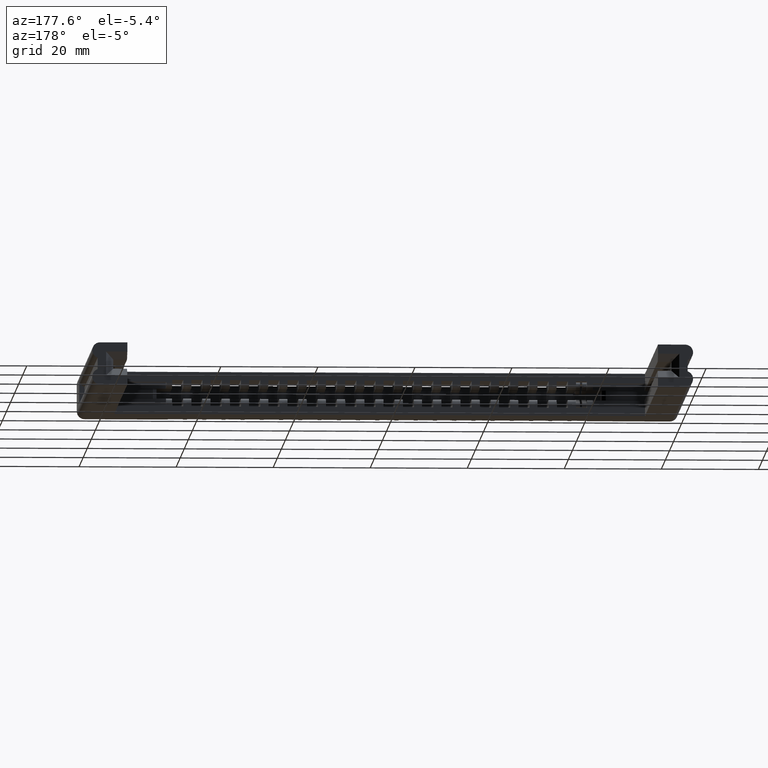
[diagram: clean part render]
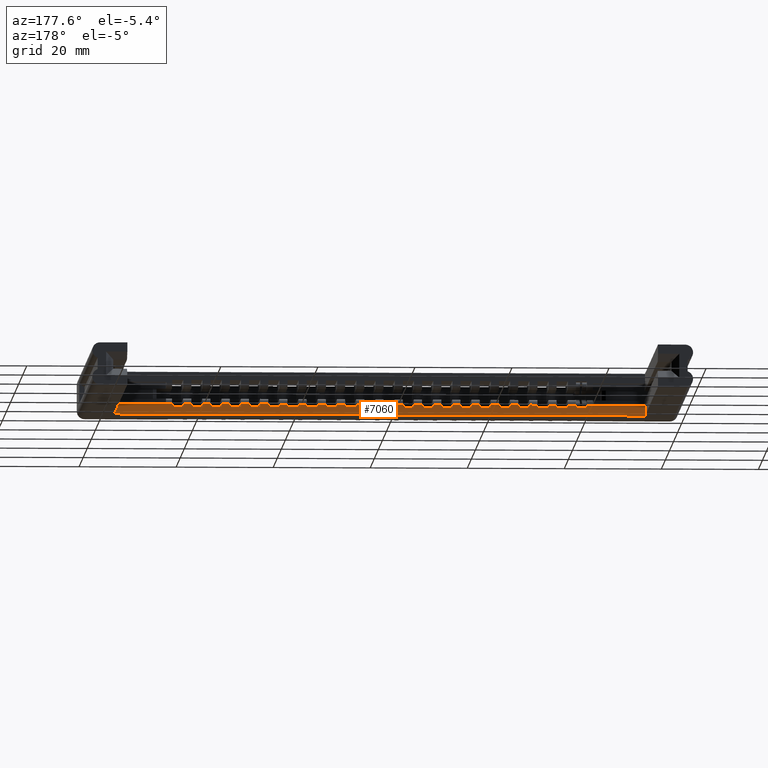
[diagram: same view with one face highlighted and labeled with its STEP entity id]
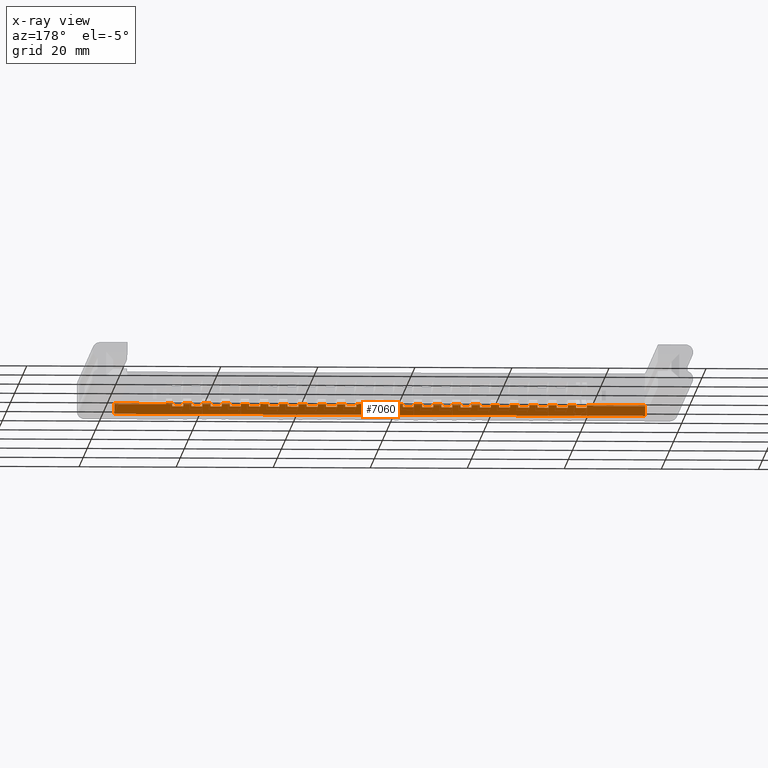
[diagram: x-ray of the same camera — body ghosted, the highlighted face saturated]
A machine part, auxiliary view. The second image highlights one B-rep face of the part: STEP entity #7060.
The next image is the same camera in x-ray: the body ghosted, the highlighted face saturated — about 0% of this face is hidden behind the body in this view.
In plain terms, the highlighted planar face has unit normal (0, -1, 0).
Its self-contained STEP definition (entity closure, byte-faithful):
#7 = DIRECTION ( 'NONE',  ( -0.0000000000000000000, -0.0000000000000000000, 1.000000000000000000 ) ) ;
#12 = DIRECTION ( 'NONE',  ( -0.0000000000000000000, -0.0000000000000000000, 1.000000000000000000 ) ) ;
#16 = VERTEX_POINT ( 'NONE', #12335 ) ;
#22 = EDGE_CURVE ( 'NONE', #7109, #6480, #3392, .T. ) ;
#38 = VERTEX_POINT ( 'NONE', #4899 ) ;
#90 = VERTEX_POINT ( 'NONE', #9988 ) ;
#92 = DIRECTION ( 'NONE',  ( 1.000000000000000000, -0.0000000000000000000, -0.0000000000000000000 ) ) ;
#114 = LINE ( 'NONE', #10436, #16698 ) ;
#162 = EDGE_CURVE ( 'NONE', #90, #12473, #4751, .T. ) ;
#164 = ORIENTED_EDGE ( 'NONE', *, *, #19438, .T. ) ;
#177 = CARTESIAN_POINT ( 'NONE',  ( 2.314499999999998900, 0.4729999999999994200, -0.1075000000000000000 ) ) ;
#211 = VECTOR ( 'NONE', #4588, 39.37007874015748100 ) ;
#238 = DIRECTION ( 'NONE',  ( 1.000000000000000000, -0.0000000000000000000, -0.0000000000000000000 ) ) ;
#265 = CARTESIAN_POINT ( 'NONE',  ( 0.7544999999999997300, 0.4729999999999994200, -0.08700000000000039600 ) ) ;
#281 = CARTESIAN_POINT ( 'NONE',  ( 1.624499999999999400, 0.4729999999999994200, -0.08700000000000039600 ) ) ;
#362 = LINE ( 'NONE', #20414, #14084 ) ;
#374 = EDGE_CURVE ( 'NONE', #17714, #21781, #4479, .T. ) ;
#380 = CARTESIAN_POINT ( 'NONE',  ( 4.590500000000000500, 0.4729999999999994200, -0.08700000000000039600 ) ) ;
#405 = EDGE_CURVE ( 'NONE', #6628, #18623, #16842, .T. ) ;
#425 = VERTEX_POINT ( 'NONE', #15583 ) ;
#435 = LINE ( 'NONE', #2223, #17486 ) ;
#453 = DIRECTION ( 'NONE',  ( 1.000000000000000000, -0.0000000000000000000, -0.0000000000000000000 ) ) ;
#472 = ORIENTED_EDGE ( 'NONE', *, *, #4162, .F. ) ;
#488 = DIRECTION ( 'NONE',  ( -0.0000000000000000000, -0.0000000000000000000, 1.000000000000000000 ) ) ;
#489 = ORIENTED_EDGE ( 'NONE', *, *, #162, .T. ) ;
#503 = VERTEX_POINT ( 'NONE', #10817 ) ;
#520 = LINE ( 'NONE', #20086, #17562 ) ;
#521 = VERTEX_POINT ( 'NONE', #15051 ) ;
#523 = DIRECTION ( 'NONE',  ( 1.000000000000000000, -0.0000000000000000000, -0.0000000000000000000 ) ) ;
#545 = LINE ( 'NONE', #9645, #18585 ) ;
#546 = LINE ( 'NONE', #18940, #9798 ) ;
#584 = DIRECTION ( 'NONE',  ( 1.000000000000000000, -0.0000000000000000000, -0.0000000000000000000 ) ) ;
#621 = EDGE_CURVE ( 'NONE', #7353, #10639, #9283, .T. ) ;
#626 = CARTESIAN_POINT ( 'NONE',  ( 0.7060000000000000700, 0.4729999999999994200, -0.08700000000000039600 ) ) ;
#637 = CARTESIAN_POINT ( 'NONE',  ( 2.314499999999998900, 0.4729999999999994200, -0.08700000000000039600 ) ) ;
#684 = VERTEX_POINT ( 'NONE', #7852 ) ;
#687 = VECTOR ( 'NONE', #453, 39.37007874015748100 ) ;
#718 = EDGE_CURVE ( 'NONE', #2139, #11867, #1403, .T. ) ;
#746 = DIRECTION ( 'NONE',  ( -0.0000000000000000000, -0.0000000000000000000, 1.000000000000000000 ) ) ;
#761 = VECTOR ( 'NONE', #14920, 39.37007874015748100 ) ;
#782 = CARTESIAN_POINT ( 'NONE',  ( 3.874499999999999400, 0.4729999999999994200, -0.08700000000000039600 ) ) ;
#797 = VECTOR ( 'NONE', #13006, 39.37007874015748100 ) ;
#811 = CARTESIAN_POINT ( 'NONE',  ( 4.590500000000000500, 0.4729999999999994200, -0.08700000000000039600 ) ) ;
#820 = LINE ( 'NONE', #18393, #9519 ) ;
#874 = ORIENTED_EDGE ( 'NONE', *, *, #15339, .T. ) ;
#986 = CARTESIAN_POINT ( 'NONE',  ( 2.092499999999999400, 0.4729999999999994200, 0.1075000000000000000 ) ) ;
#1044 = DIRECTION ( 'NONE',  ( 1.000000000000000000, -0.0000000000000000000, -0.0000000000000000000 ) ) ;
#1054 = VECTOR ( 'NONE', #17840, 39.37007874015748100 ) ;
#1066 = LINE ( 'NONE', #15035, #1636 ) ;
#1081 = ORIENTED_EDGE ( 'NONE', *, *, #14165, .F. ) ;
#1129 = VECTOR ( 'NONE', #16263, 39.37007874015748100 ) ;
#1170 = EDGE_CURVE ( 'NONE', #4948, #5492, #15008, .T. ) ;
#1245 = CARTESIAN_POINT ( 'NONE',  ( 3.496499999999999700, 0.4729999999999994200, 0.1075000000000000000 ) ) ;
#1248 = ORIENTED_EDGE ( 'NONE', *, *, #22, .F. ) ;
#1308 = LINE ( 'NONE', #19625, #9972 ) ;
#1323 = VERTEX_POINT ( 'NONE', #16858 ) ;
#1374 = CARTESIAN_POINT ( 'NONE',  ( 2.248499999999999500, 0.4729999999999994200, 0.1075000000000000000 ) ) ;
#1380 = VECTOR ( 'NONE', #3944, 39.37007874015748100 ) ;
#1403 = LINE ( 'NONE', #21845, #10601 ) ;
#1422 = VECTOR ( 'NONE', #3819, 39.37007874015748100 ) ;
#1442 = EDGE_CURVE ( 'NONE', #12750, #18879, #18562, .T. ) ;
#1503 = CARTESIAN_POINT ( 'NONE',  ( 1.000499999999999700, 0.4729999999999994200, -0.08700000000000039600 ) ) ;
#1529 = CARTESIAN_POINT ( 'NONE',  ( 1.066499999999999600, 0.4729999999999994200, -0.1075000000000000000 ) ) ;
#1546 = ORIENTED_EDGE ( 'NONE', *, *, #11499, .T. ) ;
#1554 = CARTESIAN_POINT ( 'NONE',  ( 1.312499999999999600, 0.4729999999999994200, -0.08700000000000039600 ) ) ;
#1561 = CARTESIAN_POINT ( 'NONE',  ( 1.780499999999999500, 0.4729999999999994200, 0.1075000000000000000 ) ) ;
#1570 = ORIENTED_EDGE ( 'NONE', *, *, #5375, .F. ) ;
#1636 = VECTOR ( 'NONE', #10341, 39.37007874015748100 ) ;
#1650 = VECTOR ( 'NONE', #523, 39.37007874015748100 ) ;
#1708 = CARTESIAN_POINT ( 'NONE',  ( 2.626500000000000100, 0.4729999999999994200, -0.1075000000000000000 ) ) ;
#1712 = EDGE_CURVE ( 'NONE', #5419, #11793, #21593, .T. ) ;
#1731 = CARTESIAN_POINT ( 'NONE',  ( 4.168999999999999600, 0.4729999999999994200, -0.08700000000000039600 ) ) ;
#1741 = EDGE_CURVE ( 'NONE', #15409, #14948, #17799, .T. ) ;
#1753 = EDGE_CURVE ( 'NONE', #17192, #14778, #7291, .T. ) ;
#1841 = DIRECTION ( 'NONE',  ( 1.000000000000000000, -0.0000000000000000000, -0.0000000000000000000 ) ) ;
#1846 = VECTOR ( 'NONE', #5988, 39.37007874015748100 ) ;
#1847 = VECTOR ( 'NONE', #13091, 39.37007874015748100 ) ;
#1868 = EDGE_CURVE ( 'NONE', #503, #8597, #1066, .T. ) ;
#1870 = DIRECTION ( 'NONE',  ( -1.000000000000000000, 0.0000000000000000000, 1.215234872626451300E-016 ) ) ;
#1906 = ORIENTED_EDGE ( 'NONE', *, *, #1170, .F. ) ;
#1923 = EDGE_CURVE ( 'NONE', #5702, #5492, #17536, .T. ) ;
#1997 = ORIENTED_EDGE ( 'NONE', *, *, #3996, .F. ) ;
#2001 = CARTESIAN_POINT ( 'NONE',  ( 1.780499999999999500, 0.4729999999999994200, -0.1075000000000000000 ) ) ;
#2019 = VERTEX_POINT ( 'NONE', #15105 ) ;
#2028 = CARTESIAN_POINT ( 'NONE',  ( 4.120499999999999800, 0.4729999999999994200, -0.1075000000000000000 ) ) ;
#2101 = LINE ( 'NONE', #5544, #6164 ) ;
#2104 = DIRECTION ( 'NONE',  ( -0.0000000000000000000, -0.0000000000000000000, 1.000000000000000000 ) ) ;
#2132 = VECTOR ( 'NONE', #3385, 39.37007874015748100 ) ;
#2137 = ORIENTED_EDGE ( 'NONE', *, *, #16217, .T. ) ;
#2139 = VERTEX_POINT ( 'NONE', #13826 ) ;
#2146 = LINE ( 'NONE', #12506, #7242 ) ;
#2154 = CARTESIAN_POINT ( 'NONE',  ( 1.780499999999999500, 0.4729999999999994200, -0.08700000000000039600 ) ) ;
#2196 = VERTEX_POINT ( 'NONE', #12353 ) ;
#2210 = VERTEX_POINT ( 'NONE', #281 ) ;
#2223 = CARTESIAN_POINT ( 'NONE',  ( 1.534499999999999100, 0.4729999999999994200, -0.1075000000000000000 ) ) ;
#2242 = DIRECTION ( 'NONE',  ( -0.0000000000000000000, -0.0000000000000000000, 1.000000000000000000 ) ) ;
#2253 = LINE ( 'NONE', #7834, #9797 ) ;
#2291 = VERTEX_POINT ( 'NONE', #626 ) ;
#2312 = LINE ( 'NONE', #8329, #19668 ) ;
#2354 = LINE ( 'NONE', #8047, #10951 ) ;
#2360 = VERTEX_POINT ( 'NONE', #15952 ) ;
#2405 = ORIENTED_EDGE ( 'NONE', *, *, #6818, .T. ) ;
#2413 = LINE ( 'NONE', #14429, #1846 ) ;
#2425 = DIRECTION ( 'NONE',  ( -0.0000000000000000000, -0.0000000000000000000, 1.000000000000000000 ) ) ;
#2435 = DIRECTION ( 'NONE',  ( -0.0000000000000000000, -0.0000000000000000000, 1.000000000000000000 ) ) ;
#2453 = CARTESIAN_POINT ( 'NONE',  ( 4.590500000000000500, 0.4729999999999994200, -0.08700000000000039600 ) ) ;
#2463 = EDGE_CURVE ( 'NONE', #19440, #11793, #19276, .T. ) ;
#2484 = CARTESIAN_POINT ( 'NONE',  ( 2.314499999999998900, 0.4729999999999994200, -0.1075000000000000000 ) ) ;
#2487 = EDGE_CURVE ( 'NONE', #14766, #19658, #1308, .T. ) ;
#2502 = DIRECTION ( 'NONE',  ( -0.0000000000000000000, 0.0000000000000000000, 1.000000000000000000 ) ) ;
#2581 = LINE ( 'NONE', #9712, #11181 ) ;
#2615 = CARTESIAN_POINT ( 'NONE',  ( 2.782499999999999800, 0.4729999999999994200, 0.1075000000000000000 ) ) ;
#2680 = VERTEX_POINT ( 'NONE', #5154 ) ;
#2706 = VECTOR ( 'NONE', #12439, 39.37007874015748100 ) ;
#2718 = ORIENTED_EDGE ( 'NONE', *, *, #10186, .F. ) ;
#2734 = LINE ( 'NONE', #14525, #11862 ) ;
#2739 = ORIENTED_EDGE ( 'NONE', *, *, #15605, .T. ) ;
#2761 = CARTESIAN_POINT ( 'NONE',  ( 4.590500000000000500, 0.4729999999999994200, -0.08700000000000039600 ) ) ;
#2794 = DIRECTION ( 'NONE',  ( -0.0000000000000000000, -0.0000000000000000000, 1.000000000000000000 ) ) ;
#2801 = CARTESIAN_POINT ( 'NONE',  ( 3.562499999999999600, 0.4729999999999994200, -0.1075000000000000000 ) ) ;
#2807 = ORIENTED_EDGE ( 'NONE', *, *, #11971, .T. ) ;
#2815 = DIRECTION ( 'NONE',  ( 1.000000000000000000, -0.0000000000000000000, -0.0000000000000000000 ) ) ;
#2858 = CARTESIAN_POINT ( 'NONE',  ( 4.590500000000000500, 0.4729999999999994200, -0.08700000000000039600 ) ) ;
#3000 = ORIENTED_EDGE ( 'NONE', *, *, #2463, .T. ) ;
#3007 = EDGE_CURVE ( 'NONE', #6952, #20322, #17221, .T. ) ;
#3054 = DIRECTION ( 'NONE',  ( -0.0000000000000000000, -0.0000000000000000000, 1.000000000000000000 ) ) ;
#3082 = CARTESIAN_POINT ( 'NONE',  ( 1.624499999999999400, 0.4729999999999994200, 0.1075000000000000000 ) ) ;
#3124 = CARTESIAN_POINT ( 'NONE',  ( 2.470499999999999900, 0.4729999999999994200, -0.08700000000000039600 ) ) ;
#3145 = DIRECTION ( 'NONE',  ( 1.000000000000000000, -0.0000000000000000000, -0.0000000000000000000 ) ) ;
#3160 = DIRECTION ( 'NONE',  ( -0.0000000000000000000, -0.0000000000000000000, 1.000000000000000000 ) ) ;
#3167 = EDGE_CURVE ( 'NONE', #16973, #21284, #5125, .T. ) ;
#3168 = DIRECTION ( 'NONE',  ( 0.0000000000000000000, -1.000000000000000000, 0.0000000000000000000 ) ) ;
#3199 = VERTEX_POINT ( 'NONE', #14828 ) ;
#3213 = EDGE_CURVE ( 'NONE', #10739, #20328, #13125, .T. ) ;
#3293 = LINE ( 'NONE', #10993, #11875 ) ;
#3301 = VECTOR ( 'NONE', #19097, 39.37007874015748100 ) ;
#3356 = VECTOR ( 'NONE', #15625, 39.37007874015748100 ) ;
#3364 = LINE ( 'NONE', #3761, #20635 ) ;
#3385 = DIRECTION ( 'NONE',  ( -0.0000000000000000000, -0.0000000000000000000, 1.000000000000000000 ) ) ;
#3392 = LINE ( 'NONE', #13978, #20663 ) ;
#3432 = CARTESIAN_POINT ( 'NONE',  ( 1.066499999999999600, 0.4729999999999994200, -0.08700000000000039600 ) ) ;
#3441 = LINE ( 'NONE', #13914, #20710 ) ;
#3453 = EDGE_CURVE ( 'NONE', #8855, #425, #114, .T. ) ;
#3464 = LINE ( 'NONE', #14474, #7453 ) ;
#3510 = ORIENTED_EDGE ( 'NONE', *, *, #14466, .T. ) ;
#3525 = VECTOR ( 'NONE', #4387, 39.37007874015748100 ) ;
#3537 = EDGE_CURVE ( 'NONE', #17714, #2680, #2101, .T. ) ;
#3584 = CARTESIAN_POINT ( 'NONE',  ( 3.562499999999999600, 0.4729999999999994200, -0.1075000000000000000 ) ) ;
#3592 = ORIENTED_EDGE ( 'NONE', *, *, #1753, .T. ) ;
#3605 = DIRECTION ( 'NONE',  ( -0.0000000000000000000, -0.0000000000000000000, 1.000000000000000000 ) ) ;
#3613 = ORIENTED_EDGE ( 'NONE', *, *, #12639, .T. ) ;
#3629 = VECTOR ( 'NONE', #8740, 39.37007874015748100 ) ;
#3672 = EDGE_CURVE ( 'NONE', #9068, #14673, #12569, .T. ) ;
#3681 = ORIENTED_EDGE ( 'NONE', *, *, #2487, .T. ) ;
#3692 = CARTESIAN_POINT ( 'NONE',  ( 2.404499999999999200, 0.4729999999999994200, -0.1075000000000000000 ) ) ;
#3741 = EDGE_CURVE ( 'NONE', #10118, #7177, #6940, .T. ) ;
#3761 = CARTESIAN_POINT ( 'NONE',  ( 3.874499999999999400, 0.4729999999999994200, -0.1075000000000000000 ) ) ;
#3804 = LINE ( 'NONE', #9174, #19528 ) ;
#3819 = DIRECTION ( 'NONE',  ( -0.0000000000000000000, -0.0000000000000000000, 1.000000000000000000 ) ) ;
#3831 = VERTEX_POINT ( 'NONE', #18362 ) ;
#3855 = ORIENTED_EDGE ( 'NONE', *, *, #21584, .T. ) ;
#3944 = DIRECTION ( 'NONE',  ( -0.0000000000000000000, -0.0000000000000000000, 1.000000000000000000 ) ) ;
#3996 = EDGE_CURVE ( 'NONE', #6628, #6101, #362, .T. ) ;
#4009 = ORIENTED_EDGE ( 'NONE', *, *, #1868, .T. ) ;
#4032 = CARTESIAN_POINT ( 'NONE',  ( 3.406499999999999900, 0.4729999999999994200, -0.1075000000000000000 ) ) ;
#4107 = ORIENTED_EDGE ( 'NONE', *, *, #16592, .T. ) ;
#4143 = LINE ( 'NONE', #9263, #16542 ) ;
#4162 = EDGE_CURVE ( 'NONE', #16, #20476, #19190, .T. ) ;
#4248 = DIRECTION ( 'NONE',  ( 1.000000000000000000, -0.0000000000000000000, -0.0000000000000000000 ) ) ;
#4284 = LINE ( 'NONE', #18890, #20977 ) ;
#4327 = CARTESIAN_POINT ( 'NONE',  ( 3.406499999999999900, 0.4729999999999994200, -0.08700000000000039600 ) ) ;
#4344 = ORIENTED_EDGE ( 'NONE', *, *, #13326, .T. ) ;
#4379 = DIRECTION ( 'NONE',  ( 1.000000000000000000, -0.0000000000000000000, -0.0000000000000000000 ) ) ;
#4387 = DIRECTION ( 'NONE',  ( -0.0000000000000000000, -0.0000000000000000000, 1.000000000000000000 ) ) ;
#4396 = FACE_OUTER_BOUND ( 'NONE', #10845, .T. ) ;
#4413 = CARTESIAN_POINT ( 'NONE',  ( 3.094500000000000000, 0.4729999999999994200, -0.1075000000000000000 ) ) ;
#4479 = LINE ( 'NONE', #13447, #21655 ) ;
#4490 = ORIENTED_EDGE ( 'NONE', *, *, #6984, .T. ) ;
#4517 = EDGE_CURVE ( 'NONE', #6063, #5650, #8544, .T. ) ;
#4576 = CARTESIAN_POINT ( 'NONE',  ( 3.028499999999999700, 0.4729999999999994200, -0.08700000000000039600 ) ) ;
#4588 = DIRECTION ( 'NONE',  ( 1.000000000000000000, -0.0000000000000000000, -0.0000000000000000000 ) ) ;
#4605 = VECTOR ( 'NONE', #16406, 39.37007874015748100 ) ;
#4655 = CARTESIAN_POINT ( 'NONE',  ( 4.590500000000000500, 0.4729999999999994200, -0.08700000000000039600 ) ) ;
#4684 = VERTEX_POINT ( 'NONE', #265 ) ;
#4707 = LINE ( 'NONE', #2761, #17062 ) ;
#4735 = CARTESIAN_POINT ( 'NONE',  ( 1.378499999999999600, 0.4729999999999994200, -0.1075000000000000000 ) ) ;
#4748 = CARTESIAN_POINT ( 'NONE',  ( 3.496499999999999300, 0.4729999999999994200, -0.08700000000000039600 ) ) ;
#4751 = LINE ( 'NONE', #17267, #13271 ) ;
#4757 = CARTESIAN_POINT ( 'NONE',  ( 2.314499999999998900, 0.4729999999999994200, 0.1075000000000000000 ) ) ;
#4769 = VERTEX_POINT ( 'NONE', #14253 ) ;
#4776 = VECTOR ( 'NONE', #4248, 39.37007874015748100 ) ;
#4830 = VERTEX_POINT ( 'NONE', #17695 ) ;
#4894 = ORIENTED_EDGE ( 'NONE', *, *, #6644, .T. ) ;
#4895 = VECTOR ( 'NONE', #18454, 39.37007874015748100 ) ;
#4899 = CARTESIAN_POINT ( 'NONE',  ( 1.156499999999999600, 0.4729999999999994200, -0.08700000000000039600 ) ) ;
#4940 = LINE ( 'NONE', #18001, #211 ) ;
#4948 = VERTEX_POINT ( 'NONE', #19603 ) ;
#4967 = LINE ( 'NONE', #13153, #8980 ) ;
#5032 = CARTESIAN_POINT ( 'NONE',  ( 4.590500000000000500, 0.4729999999999994200, -0.08700000000000039600 ) ) ;
#5042 = CARTESIAN_POINT ( 'NONE',  ( 1.468499999999999700, 0.4729999999999994200, -0.1075000000000000000 ) ) ;
#5059 = EDGE_CURVE ( 'NONE', #2291, #4684, #12727, .T. ) ;
#5065 = EDGE_CURVE ( 'NONE', #3199, #16973, #7644, .T. ) ;
#5125 = LINE ( 'NONE', #2858, #4605 ) ;
#5141 = VERTEX_POINT ( 'NONE', #6756 ) ;
#5154 = CARTESIAN_POINT ( 'NONE',  ( 1.222499999999999500, 0.4729999999999994200, -0.08700000000000039600 ) ) ;
#5169 = LINE ( 'NONE', #17257, #21305 ) ;
#5214 = VECTOR ( 'NONE', #18616, 39.37007874015748100 ) ;
#5222 = VECTOR ( 'NONE', #12491, 39.37007874015748100 ) ;
#5262 = ORIENTED_EDGE ( 'NONE', *, *, #5065, .T. ) ;
#5266 = VECTOR ( 'NONE', #16557, 39.37007874015748100 ) ;
#5280 = ORIENTED_EDGE ( 'NONE', *, *, #20153, .T. ) ;
#5307 = VERTEX_POINT ( 'NONE', #9017 ) ;
#5335 = ORIENTED_EDGE ( 'NONE', *, *, #6805, .T. ) ;
#5358 = LINE ( 'NONE', #20626, #687 ) ;
#5375 = EDGE_CURVE ( 'NONE', #13053, #16215, #546, .T. ) ;
#5416 = ORIENTED_EDGE ( 'NONE', *, *, #9475, .T. ) ;
#5419 = VERTEX_POINT ( 'NONE', #10822 ) ;
#5425 = LINE ( 'NONE', #13342, #761 ) ;
#5440 = ORIENTED_EDGE ( 'NONE', *, *, #1923, .T. ) ;
#5492 = VERTEX_POINT ( 'NONE', #9333 ) ;
#5544 = CARTESIAN_POINT ( 'NONE',  ( 1.222499999999999500, 0.4729999999999994200, 0.1075000000000000000 ) ) ;
#5626 = LINE ( 'NONE', #11517, #14650 ) ;
#5627 = ORIENTED_EDGE ( 'NONE', *, *, #14339, .F. ) ;
#5650 = VERTEX_POINT ( 'NONE', #21286 ) ;
#5702 = VERTEX_POINT ( 'NONE', #9909 ) ;
#5725 = LINE ( 'NONE', #5821, #10291 ) ;
#5808 = EDGE_CURVE ( 'NONE', #2210, #7552, #520, .T. ) ;
#5821 = CARTESIAN_POINT ( 'NONE',  ( 1.468499999999999700, 0.4729999999999994200, 0.1075000000000000000 ) ) ;
#5844 = CARTESIAN_POINT ( 'NONE',  ( 0.2844999999999999200, 0.4729999999999995900, -0.08999999999999994100 ) ) ;
#5875 = EDGE_CURVE ( 'NONE', #4830, #18961, #20342, .T. ) ;
#5944 = VECTOR ( 'NONE', #2815, 39.37007874015748100 ) ;
#5988 = DIRECTION ( 'NONE',  ( -0.0000000000000000000, -0.0000000000000000000, -1.000000000000000000 ) ) ;
#6029 = ORIENTED_EDGE ( 'NONE', *, *, #6947, .T. ) ;
#6059 = LINE ( 'NONE', #17292, #1422 ) ;
#6063 = VERTEX_POINT ( 'NONE', #5844 ) ;
#6086 = ORIENTED_EDGE ( 'NONE', *, *, #3007, .T. ) ;
#6101 = VERTEX_POINT ( 'NONE', #12786 ) ;
#6164 = VECTOR ( 'NONE', #7240, 39.37007874015748100 ) ;
#6190 = CARTESIAN_POINT ( 'NONE',  ( 2.560499999999999800, 0.4729999999999994200, -0.08700000000000039600 ) ) ;
#6230 = EDGE_CURVE ( 'NONE', #2196, #7552, #4967, .T. ) ;
#6235 = CARTESIAN_POINT ( 'NONE',  ( 3.496499999999999700, 0.4729999999999994200, -0.1075000000000000000 ) ) ;
#6256 = DIRECTION ( 'NONE',  ( 1.000000000000000000, -0.0000000000000000000, -0.0000000000000000000 ) ) ;
#6276 = EDGE_CURVE ( 'NONE', #2019, #18689, #8449, .T. ) ;
#6327 = ORIENTED_EDGE ( 'NONE', *, *, #718, .F. ) ;
#6364 = VECTOR ( 'NONE', #10316, 39.37007874015748100 ) ;
#6391 = CARTESIAN_POINT ( 'NONE',  ( 3.718499999999999700, 0.4729999999999994200, 0.1075000000000000000 ) ) ;
#6406 = DIRECTION ( 'NONE',  ( -0.0000000000000000000, -0.0000000000000000000, 1.000000000000000000 ) ) ;
#6441 = CARTESIAN_POINT ( 'NONE',  ( 3.808499999999999600, 0.4729999999999994200, 0.1075000000000000000 ) ) ;
#6467 = ORIENTED_EDGE ( 'NONE', *, *, #16349, .T. ) ;
#6480 = VERTEX_POINT ( 'NONE', #3432 ) ;
#6527 = DIRECTION ( 'NONE',  ( -0.0000000000000000000, -0.0000000000000000000, 1.000000000000000000 ) ) ;
#6529 = LINE ( 'NONE', #16185, #1129 ) ;
#6549 = CARTESIAN_POINT ( 'NONE',  ( 4.590500000000000500, 0.4729999999999994200, 0.1715000000000000100 ) ) ;
#6572 = LINE ( 'NONE', #1561, #19359 ) ;
#6576 = ORIENTED_EDGE ( 'NONE', *, *, #3213, .F. ) ;
#6628 = VERTEX_POINT ( 'NONE', #18892 ) ;
#6630 = CARTESIAN_POINT ( 'NONE',  ( 3.094499999999999600, 0.4729999999999994200, -0.08700000000000039600 ) ) ;
#6644 = EDGE_CURVE ( 'NONE', #2196, #14489, #8950, .T. ) ;
#6658 = DIRECTION ( 'NONE',  ( 1.000000000000000000, -0.0000000000000000000, -0.0000000000000000000 ) ) ;
#6678 = CARTESIAN_POINT ( 'NONE',  ( 3.562499999999999600, 0.4729999999999994200, 0.1075000000000000000 ) ) ;
#6756 = CARTESIAN_POINT ( 'NONE',  ( 1.468499999999999700, 0.4729999999999994200, -0.08700000000000039600 ) ) ;
#6760 = CARTESIAN_POINT ( 'NONE',  ( 0.7544999999999997300, 0.4729999999999994200, -0.1075000000000000000 ) ) ;
#6788 = VECTOR ( 'NONE', #16584, 39.37007874015748100 ) ;
#6790 = DIRECTION ( 'NONE',  ( -0.0000000000000000000, -0.0000000000000000000, 1.000000000000000000 ) ) ;
#6805 = EDGE_CURVE ( 'NONE', #19658, #9029, #15759, .T. ) ;
#6818 = EDGE_CURVE ( 'NONE', #14948, #5141, #5725, .T. ) ;
#6891 = VECTOR ( 'NONE', #15273, 39.37007874015748100 ) ;
#6920 = CARTESIAN_POINT ( 'NONE',  ( 3.184499999999999900, 0.4729999999999994200, 0.1075000000000000000 ) ) ;
#6940 = LINE ( 'NONE', #16463, #19727 ) ;
#6947 = EDGE_CURVE ( 'NONE', #12750, #20774, #20330, .T. ) ;
#6952 = VERTEX_POINT ( 'NONE', #16354 ) ;
#6984 = EDGE_CURVE ( 'NONE', #684, #5307, #19304, .T. ) ;
#7004 = ORIENTED_EDGE ( 'NONE', *, *, #13898, .T. ) ;
#7043 = VECTOR ( 'NONE', #3605, 39.37007874015748100 ) ;
#7060 = ADVANCED_FACE ( 'NONE', ( #4396 ), #21506, .F. ) ;
#7085 = VERTEX_POINT ( 'NONE', #21581 ) ;
#7109 = VERTEX_POINT ( 'NONE', #1529 ) ;
#7177 = VERTEX_POINT ( 'NONE', #10381 ) ;
#7183 = CARTESIAN_POINT ( 'NONE',  ( 1.222499999999999500, 0.4729999999999994200, -0.1075000000000000000 ) ) ;
#7186 = ORIENTED_EDGE ( 'NONE', *, *, #18936, .T. ) ;
#7240 = DIRECTION ( 'NONE',  ( -0.0000000000000000000, -0.0000000000000000000, 1.000000000000000000 ) ) ;
#7242 = VECTOR ( 'NONE', #2242, 39.37007874015748100 ) ;
#7262 = DIRECTION ( 'NONE',  ( -0.0000000000000000000, -0.0000000000000000000, 1.000000000000000000 ) ) ;
#7291 = LINE ( 'NONE', #16614, #3301 ) ;
#7295 = DIRECTION ( 'NONE',  ( 1.000000000000000000, -0.0000000000000000000, -0.0000000000000000000 ) ) ;
#7353 = VERTEX_POINT ( 'NONE', #14082 ) ;
#7453 = VECTOR ( 'NONE', #746, 39.37007874015748100 ) ;
#7499 = EDGE_CURVE ( 'NONE', #15852, #11867, #21057, .T. ) ;
#7523 = ORIENTED_EDGE ( 'NONE', *, *, #5808, .T. ) ;
#7552 = VERTEX_POINT ( 'NONE', #16258 ) ;
#7608 = ORIENTED_EDGE ( 'NONE', *, *, #4517, .F. ) ;
#7632 = CARTESIAN_POINT ( 'NONE',  ( 2.938499999999999900, 0.4729999999999994200, -0.08700000000000039600 ) ) ;
#7633 = VECTOR ( 'NONE', #1841, 39.37007874015748100 ) ;
#7644 = LINE ( 'NONE', #1374, #20384 ) ;
#7645 = ORIENTED_EDGE ( 'NONE', *, *, #14143, .T. ) ;
#7693 = EDGE_CURVE ( 'NONE', #38, #2680, #21008, .T. ) ;
#7730 = CARTESIAN_POINT ( 'NONE',  ( 4.168999999999999600, 0.4729999999999995900, -0.08999999999999999700 ) ) ;
#7834 = CARTESIAN_POINT ( 'NONE',  ( 2.158499999999999200, 0.4729999999999994200, -0.1075000000000000000 ) ) ;
#7852 = CARTESIAN_POINT ( 'NONE',  ( 3.964499999999999200, 0.4729999999999994200, -0.1075000000000000000 ) ) ;
#7910 = ORIENTED_EDGE ( 'NONE', *, *, #18970, .T. ) ;
#7947 = CARTESIAN_POINT ( 'NONE',  ( 3.250499999999999700, 0.4729999999999994200, -0.1075000000000000000 ) ) ;
#8022 = DIRECTION ( 'NONE',  ( 1.000000000000000000, -0.0000000000000000000, -0.0000000000000000000 ) ) ;
#8047 = CARTESIAN_POINT ( 'NONE',  ( 4.590500000000000500, 0.4729999999999994200, -0.1715000000000000100 ) ) ;
#8093 = DIRECTION ( 'NONE',  ( -0.0000000000000000000, -0.0000000000000000000, 1.000000000000000000 ) ) ;
#8126 = ORIENTED_EDGE ( 'NONE', *, *, #20587, .T. ) ;
#8139 = DIRECTION ( 'NONE',  ( 1.000000000000000000, -0.0000000000000000000, -0.0000000000000000000 ) ) ;
#8168 = VERTEX_POINT ( 'NONE', #4748 ) ;
#8231 = CARTESIAN_POINT ( 'NONE',  ( 3.406499999999999900, 0.4729999999999994200, 0.1075000000000000000 ) ) ;
#8307 = VECTOR ( 'NONE', #1870, 39.37007874015748100 ) ;
#8329 = CARTESIAN_POINT ( 'NONE',  ( 4.590500000000000500, 0.4729999999999994200, -0.08700000000000039600 ) ) ;
#8385 = CARTESIAN_POINT ( 'NONE',  ( 0.9104999999999996400, 0.4729999999999994200, -0.08700000000000039600 ) ) ;
#8449 = LINE ( 'NONE', #11524, #16813 ) ;
#8507 = ORIENTED_EDGE ( 'NONE', *, *, #13317, .F. ) ;
#8544 = LINE ( 'NONE', #10248, #20986 ) ;
#8597 = VERTEX_POINT ( 'NONE', #20485 ) ;
#8613 = CARTESIAN_POINT ( 'NONE',  ( 3.028499999999999700, 0.4729999999999994200, -0.1075000000000000000 ) ) ;
#8648 = EDGE_CURVE ( 'NONE', #21090, #521, #16153, .T. ) ;
#8689 = ORIENTED_EDGE ( 'NONE', *, *, #19694, .T. ) ;
#8723 = VERTEX_POINT ( 'NONE', #10928 ) ;
#8733 = CARTESIAN_POINT ( 'NONE',  ( 1.000499999999999700, 0.4729999999999994200, 0.1075000000000000000 ) ) ;
#8734 = CARTESIAN_POINT ( 'NONE',  ( 4.590500000000000500, 0.4729999999999994200, -0.08700000000000039600 ) ) ;
#8740 = DIRECTION ( 'NONE',  ( 1.000000000000000000, -0.0000000000000000000, -0.0000000000000000000 ) ) ;
#8841 = LINE ( 'NONE', #15416, #8307 ) ;
#8855 = VERTEX_POINT ( 'NONE', #21112 ) ;
#8938 = CARTESIAN_POINT ( 'NONE',  ( 2.938499999999999900, 0.4729999999999994200, -0.1075000000000000000 ) ) ;
#8950 = LINE ( 'NONE', #18967, #17291 ) ;
#8952 = DIRECTION ( 'NONE',  ( 0.0000000000000000000, 0.0000000000000000000, -1.000000000000000000 ) ) ;
#8980 = VECTOR ( 'NONE', #21261, 39.37007874015748100 ) ;
#9017 = CARTESIAN_POINT ( 'NONE',  ( 3.964499999999998800, 0.4729999999999994200, -0.08700000000000039600 ) ) ;
#9026 = EDGE_CURVE ( 'NONE', #8723, #12711, #16642, .T. ) ;
#9029 = VERTEX_POINT ( 'NONE', #8385 ) ;
#9068 = VERTEX_POINT ( 'NONE', #1554 ) ;
#9174 = CARTESIAN_POINT ( 'NONE',  ( 2.002499999999999100, 0.4729999999999994200, 0.1075000000000000000 ) ) ;
#9251 = VERTEX_POINT ( 'NONE', #15694 ) ;
#9263 = CARTESIAN_POINT ( 'NONE',  ( 0.7544999999999997300, 0.4729999999999994200, 0.1075000000000000000 ) ) ;
#9283 = LINE ( 'NONE', #9451, #3629 ) ;
#9300 = CARTESIAN_POINT ( 'NONE',  ( 3.094500000000000000, 0.4729999999999994200, 0.1075000000000000000 ) ) ;
#9307 = CARTESIAN_POINT ( 'NONE',  ( 1.846499999999999600, 0.4729999999999994200, -0.08700000000000039600 ) ) ;
#9329 = LINE ( 'NONE', #2484, #4776 ) ;
#9333 = CARTESIAN_POINT ( 'NONE',  ( 3.250499999999999700, 0.4729999999999994200, -0.08700000000000039600 ) ) ;
#9364 = EDGE_CURVE ( 'NONE', #17694, #21090, #9329, .T. ) ;
#9436 = ORIENTED_EDGE ( 'NONE', *, *, #14885, .T. ) ;
#9439 = ORIENTED_EDGE ( 'NONE', *, *, #3453, .T. ) ;
#9451 = CARTESIAN_POINT ( 'NONE',  ( 2.002499999999999100, 0.4729999999999994200, -0.1075000000000000000 ) ) ;
#9475 = EDGE_CURVE ( 'NONE', #9685, #17365, #2581, .T. ) ;
#9488 = VECTOR ( 'NONE', #7295, 39.37007874015748100 ) ;
#9519 = VECTOR ( 'NONE', #20038, 39.37007874015748100 ) ;
#9645 = CARTESIAN_POINT ( 'NONE',  ( 4.590500000000000500, 0.4729999999999994200, -0.08999999999999992700 ) ) ;
#9656 = CARTESIAN_POINT ( 'NONE',  ( 3.718499999999999300, 0.4729999999999994200, -0.08700000000000039600 ) ) ;
#9685 = VERTEX_POINT ( 'NONE', #8613 ) ;
#9696 = ORIENTED_EDGE ( 'NONE', *, *, #3672, .T. ) ;
#9712 = CARTESIAN_POINT ( 'NONE',  ( 3.028499999999999700, 0.4729999999999994200, 0.1075000000000000000 ) ) ;
#9794 = DIRECTION ( 'NONE',  ( -1.000000000000000000, 0.0000000000000000000, 0.0000000000000000000 ) ) ;
#9797 = VECTOR ( 'NONE', #21027, 39.37007874015748100 ) ;
#9798 = VECTOR ( 'NONE', #7262, 39.37007874015748100 ) ;
#9819 = DIRECTION ( 'NONE',  ( -0.0000000000000000000, -0.0000000000000000000, 1.000000000000000000 ) ) ;
#9826 = ORIENTED_EDGE ( 'NONE', *, *, #7499, .T. ) ;
#9841 = ORIENTED_EDGE ( 'NONE', *, *, #12442, .T. ) ;
#9909 = CARTESIAN_POINT ( 'NONE',  ( 3.184499999999999900, 0.4729999999999994200, -0.08700000000000039600 ) ) ;
#9972 = VECTOR ( 'NONE', #16365, 39.37007874015748100 ) ;
#9988 = CARTESIAN_POINT ( 'NONE',  ( 1.936499999999999700, 0.4729999999999994200, -0.08700000000000039600 ) ) ;
#10056 = VERTEX_POINT ( 'NONE', #21018 ) ;
#10118 = VERTEX_POINT ( 'NONE', #11345 ) ;
#10186 = EDGE_CURVE ( 'NONE', #13956, #16769, #14272, .T. ) ;
#10248 = CARTESIAN_POINT ( 'NONE',  ( 0.2844999999999999200, 0.4729999999999994200, 0.1715000000000000100 ) ) ;
#10289 = VERTEX_POINT ( 'NONE', #21650 ) ;
#10291 = VECTOR ( 'NONE', #19178, 39.37007874015748100 ) ;
#10316 = DIRECTION ( 'NONE',  ( 1.000000000000000000, -0.0000000000000000000, -0.0000000000000000000 ) ) ;
#10330 = CARTESIAN_POINT ( 'NONE',  ( 2.938499999999999900, 0.4729999999999994200, -0.1075000000000000000 ) ) ;
#10341 = DIRECTION ( 'NONE',  ( 1.000000000000000000, -0.0000000000000000000, -0.0000000000000000000 ) ) ;
#10381 = CARTESIAN_POINT ( 'NONE',  ( 2.626500000000000100, 0.4729999999999994200, -0.08700000000000039600 ) ) ;
#10400 = EDGE_CURVE ( 'NONE', #8597, #14944, #18350, .T. ) ;
#10436 = CARTESIAN_POINT ( 'NONE',  ( 2.716499999999999900, 0.4729999999999994200, 0.1075000000000000000 ) ) ;
#10462 = EDGE_CURVE ( 'NONE', #2139, #684, #3364, .T. ) ;
#10571 = DIRECTION ( 'NONE',  ( -0.0000000000000000000, -0.0000000000000000000, 1.000000000000000000 ) ) ;
#10601 = VECTOR ( 'NONE', #21913, 39.37007874015748100 ) ;
#10639 = VERTEX_POINT ( 'NONE', #20925 ) ;
#10652 = EDGE_CURVE ( 'NONE', #7109, #16623, #2734, .T. ) ;
#10696 = DIRECTION ( 'NONE',  ( 1.000000000000000000, -0.0000000000000000000, -0.0000000000000000000 ) ) ;
#10739 = VERTEX_POINT ( 'NONE', #11392 ) ;
#10817 = CARTESIAN_POINT ( 'NONE',  ( 0.9104999999999996400, 0.4729999999999994200, -0.1075000000000000000 ) ) ;
#10822 = CARTESIAN_POINT ( 'NONE',  ( 1.846499999999999600, 0.4729999999999994200, -0.1075000000000000000 ) ) ;
#10840 = VECTOR ( 'NONE', #92, 39.37007874015748100 ) ;
#10845 = EDGE_LOOP ( 'NONE', ( #1081, #17293, #19854, #7608, #19081, #15786, #19874, #16573, #20426, #3681, #5335, #14884, #4009, #21752, #7186, #1248, #15406, #1546, #11805, #14399, #11548, #17480, #9696, #5627, #21517, #2405, #3510, #1570, #11283, #9436, #7523, #16998, #4894, #7004, #3000, #21070, #19820, #8126, #489, #18299, #18322, #11648, #3613, #19892, #7645, #5262, #14798, #21663, #16093, #20915, #5280, #8507, #6086, #18491, #2137, #16731, #4344, #9439, #6467, #11567, #12620, #18012, #14690, #2718, #164, #5416, #4107, #472, #19554, #2739, #5440, #1906, #8689, #18054, #3855, #17809, #3592, #13213, #11376, #16310, #6029, #2807, #7910, #6576, #20387, #21404, #9826, #6327, #16345, #4490, #874, #1997, #13280, #9841, #10906, #21177 ) ) ;
#10906 = ORIENTED_EDGE ( 'NONE', *, *, #9026, .T. ) ;
#10928 = CARTESIAN_POINT ( 'NONE',  ( 4.120499999999998900, 0.4729999999999994200, -0.08700000000000039600 ) ) ;
#10951 = VECTOR ( 'NONE', #9794, 39.37007874015748100 ) ;
#10954 = VECTOR ( 'NONE', #2435, 39.37007874015748100 ) ;
#10993 = CARTESIAN_POINT ( 'NONE',  ( 1.312499999999999600, 0.4729999999999994200, 0.1075000000000000000 ) ) ;
#11094 = EDGE_CURVE ( 'NONE', #7353, #12473, #3804, .T. ) ;
#11181 = VECTOR ( 'NONE', #19605, 39.37007874015748100 ) ;
#11191 = EDGE_CURVE ( 'NONE', #21214, #4769, #12617, .T. ) ;
#11215 = VERTEX_POINT ( 'NONE', #14597 ) ;
#11270 = VECTOR ( 'NONE', #3054, 39.37007874015748100 ) ;
#11281 = LINE ( 'NONE', #21701, #2132 ) ;
#11283 = ORIENTED_EDGE ( 'NONE', *, *, #18158, .T. ) ;
#11325 = CARTESIAN_POINT ( 'NONE',  ( 4.030500000000000000, 0.4729999999999994200, -0.1075000000000000000 ) ) ;
#11337 = VECTOR ( 'NONE', #2502, 39.37007874015748100 ) ;
#11345 = CARTESIAN_POINT ( 'NONE',  ( 2.626500000000000100, 0.4729999999999994200, -0.1075000000000000000 ) ) ;
#11350 = LINE ( 'NONE', #8231, #6788 ) ;
#11376 = ORIENTED_EDGE ( 'NONE', *, *, #15178, .T. ) ;
#11392 = CARTESIAN_POINT ( 'NONE',  ( 3.718499999999999700, 0.4729999999999994200, -0.1075000000000000000 ) ) ;
#11454 = LINE ( 'NONE', #13630, #6891 ) ;
#11493 = CARTESIAN_POINT ( 'NONE',  ( 3.964499999999999200, 0.4729999999999994200, 0.1075000000000000000 ) ) ;
#11499 = EDGE_CURVE ( 'NONE', #16623, #38, #11281, .T. ) ;
#11517 = CARTESIAN_POINT ( 'NONE',  ( 3.652499999999999400, 0.4729999999999994200, 0.1075000000000000000 ) ) ;
#11524 = CARTESIAN_POINT ( 'NONE',  ( 3.340499999999999600, 0.4729999999999994200, 0.1075000000000000000 ) ) ;
#11548 = ORIENTED_EDGE ( 'NONE', *, *, #374, .T. ) ;
#11552 = LINE ( 'NONE', #7947, #1847 ) ;
#11567 = ORIENTED_EDGE ( 'NONE', *, *, #11191, .F. ) ;
#11648 = ORIENTED_EDGE ( 'NONE', *, *, #15951, .T. ) ;
#11756 = VECTOR ( 'NONE', #10571, 39.37007874015748100 ) ;
#11758 = VECTOR ( 'NONE', #20069, 39.37007874015748100 ) ;
#11793 = VERTEX_POINT ( 'NONE', #9307 ) ;
#11805 = ORIENTED_EDGE ( 'NONE', *, *, #7693, .T. ) ;
#11862 = VECTOR ( 'NONE', #4379, 39.37007874015748100 ) ;
#11867 = VERTEX_POINT ( 'NONE', #782 ) ;
#11875 = VECTOR ( 'NONE', #2425, 39.37007874015748100 ) ;
#11971 = EDGE_CURVE ( 'NONE', #20774, #16465, #5626, .T. ) ;
#12014 = VERTEX_POINT ( 'NONE', #3124 ) ;
#12172 = LINE ( 'NONE', #8734, #7633 ) ;
#12179 = CARTESIAN_POINT ( 'NONE',  ( 4.590500000000000500, 0.4729999999999994200, -0.1715000000000000100 ) ) ;
#12205 = EDGE_CURVE ( 'NONE', #17223, #6063, #8841, .T. ) ;
#12251 = CARTESIAN_POINT ( 'NONE',  ( 1.312499999999999600, 0.4729999999999994200, -0.1075000000000000000 ) ) ;
#12307 = VECTOR ( 'NONE', #3145, 39.37007874015748100 ) ;
#12335 = CARTESIAN_POINT ( 'NONE',  ( 3.094500000000000000, 0.4729999999999994200, -0.1075000000000000000 ) ) ;
#12353 = CARTESIAN_POINT ( 'NONE',  ( 1.690499999999999400, 0.4729999999999994200, -0.1075000000000000000 ) ) ;
#12397 = CARTESIAN_POINT ( 'NONE',  ( 2.782499999999999800, 0.4729999999999994200, -0.1075000000000000000 ) ) ;
#12439 = DIRECTION ( 'NONE',  ( 1.000000000000000000, -0.0000000000000000000, -0.0000000000000000000 ) ) ;
#12442 = EDGE_CURVE ( 'NONE', #18623, #8723, #3464, .T. ) ;
#12450 = LINE ( 'NONE', #20458, #3356 ) ;
#12467 = VECTOR ( 'NONE', #8022, 39.37007874015748100 ) ;
#12473 = VERTEX_POINT ( 'NONE', #14728 ) ;
#12491 = DIRECTION ( 'NONE',  ( 1.000000000000000000, -0.0000000000000000000, -0.0000000000000000000 ) ) ;
#12492 = DIRECTION ( 'NONE',  ( 1.000000000000000000, -0.0000000000000000000, -0.0000000000000000000 ) ) ;
#12506 = CARTESIAN_POINT ( 'NONE',  ( 2.560499999999999800, 0.4729999999999994200, 0.1075000000000000000 ) ) ;
#12569 = LINE ( 'NONE', #2453, #16431 ) ;
#12590 = VECTOR ( 'NONE', #19735, 39.37007874015748100 ) ;
#12617 = LINE ( 'NONE', #2615, #3525 ) ;
#12620 = ORIENTED_EDGE ( 'NONE', *, *, #17142, .T. ) ;
#12639 = EDGE_CURVE ( 'NONE', #9251, #2360, #16155, .T. ) ;
#12711 = VERTEX_POINT ( 'NONE', #1731 ) ;
#12727 = LINE ( 'NONE', #19894, #21401 ) ;
#12750 = VERTEX_POINT ( 'NONE', #3584 ) ;
#12756 = CARTESIAN_POINT ( 'NONE',  ( 3.808499999999999600, 0.4729999999999994200, -0.08700000000000039600 ) ) ;
#12786 = CARTESIAN_POINT ( 'NONE',  ( 4.030500000000000000, 0.4729999999999994200, -0.08700000000000039600 ) ) ;
#12806 = DIRECTION ( 'NONE',  ( -0.0000000000000000000, -0.0000000000000000000, 1.000000000000000000 ) ) ;
#12807 = DIRECTION ( 'NONE',  ( 1.000000000000000000, -0.0000000000000000000, -0.0000000000000000000 ) ) ;
#12817 = EDGE_CURVE ( 'NONE', #10739, #1323, #3441, .T. ) ;
#12873 = VECTOR ( 'NONE', #584, 39.37007874015748100 ) ;
#12881 = DIRECTION ( 'NONE',  ( 1.000000000000000000, -0.0000000000000000000, -0.0000000000000000000 ) ) ;
#13006 = DIRECTION ( 'NONE',  ( 1.000000000000000000, -0.0000000000000000000, -0.0000000000000000000 ) ) ;
#13052 = DIRECTION ( 'NONE',  ( -1.000000000000000000, 0.0000000000000000000, -1.215234872626450500E-016 ) ) ;
#13053 = VERTEX_POINT ( 'NONE', #17854 ) ;
#13091 = DIRECTION ( 'NONE',  ( 1.000000000000000000, -0.0000000000000000000, -0.0000000000000000000 ) ) ;
#13098 = VECTOR ( 'NONE', #8139, 39.37007874015748100 ) ;
#13125 = LINE ( 'NONE', #6391, #12590 ) ;
#13153 = CARTESIAN_POINT ( 'NONE',  ( 1.690499999999999400, 0.4729999999999994200, 0.1075000000000000000 ) ) ;
#13213 = ORIENTED_EDGE ( 'NONE', *, *, #18445, .T. ) ;
#13231 = CARTESIAN_POINT ( 'NONE',  ( 1.846499999999999600, 0.4729999999999994200, 0.1075000000000000000 ) ) ;
#13271 = VECTOR ( 'NONE', #18844, 39.37007874015748100 ) ;
#13278 = CARTESIAN_POINT ( 'NONE',  ( 2.872499999999999600, 0.4729999999999994200, -0.08700000000000039600 ) ) ;
#13280 = ORIENTED_EDGE ( 'NONE', *, *, #405, .T. ) ;
#13317 = EDGE_CURVE ( 'NONE', #6952, #12014, #11454, .T. ) ;
#13326 = EDGE_CURVE ( 'NONE', #10118, #8855, #15345, .T. ) ;
#13342 = CARTESIAN_POINT ( 'NONE',  ( 4.590500000000000500, 0.4729999999999994200, -0.08700000000000039600 ) ) ;
#13388 = VECTOR ( 'NONE', #16529, 39.37007874015748100 ) ;
#13447 = CARTESIAN_POINT ( 'NONE',  ( 1.222499999999999500, 0.4729999999999994200, -0.1075000000000000000 ) ) ;
#13580 = CARTESIAN_POINT ( 'NONE',  ( 2.248499999999999500, 0.4729999999999994200, -0.08700000000000039600 ) ) ;
#13630 = CARTESIAN_POINT ( 'NONE',  ( 2.470499999999999900, 0.4729999999999994200, 0.1075000000000000000 ) ) ;
#13663 = VERTEX_POINT ( 'NONE', #7730 ) ;
#13678 = CARTESIAN_POINT ( 'NONE',  ( 1.378499999999999600, 0.4729999999999994200, -0.1075000000000000000 ) ) ;
#13690 = LINE ( 'NONE', #986, #21834 ) ;
#13706 = DIRECTION ( 'NONE',  ( -0.0000000000000000000, -0.0000000000000000000, 1.000000000000000000 ) ) ;
#13802 = CARTESIAN_POINT ( 'NONE',  ( 2.872499999999999600, 0.4729999999999994200, 0.1075000000000000000 ) ) ;
#13826 = CARTESIAN_POINT ( 'NONE',  ( 3.874499999999999400, 0.4729999999999994200, -0.1075000000000000000 ) ) ;
#13887 = LINE ( 'NONE', #6441, #13388 ) ;
#13898 = EDGE_CURVE ( 'NONE', #14489, #19440, #6572, .T. ) ;
#13914 = CARTESIAN_POINT ( 'NONE',  ( 3.718499999999999700, 0.4729999999999994200, -0.1075000000000000000 ) ) ;
#13943 = LINE ( 'NONE', #12397, #9488 ) ;
#13956 = VERTEX_POINT ( 'NONE', #10330 ) ;
#13978 = CARTESIAN_POINT ( 'NONE',  ( 1.066499999999999600, 0.4729999999999994200, 0.1075000000000000000 ) ) ;
#13996 = VECTOR ( 'NONE', #12, 39.37007874015748100 ) ;
#14039 = EDGE_CURVE ( 'NONE', #503, #9029, #12450, .T. ) ;
#14082 = CARTESIAN_POINT ( 'NONE',  ( 2.002499999999999100, 0.4729999999999994200, -0.1075000000000000000 ) ) ;
#14084 = VECTOR ( 'NONE', #18701, 39.37007874015748100 ) ;
#14143 = EDGE_CURVE ( 'NONE', #3831, #3199, #2253, .T. ) ;
#14151 = VERTEX_POINT ( 'NONE', #6190 ) ;
#14165 = EDGE_CURVE ( 'NONE', #20962, #13663, #545, .T. ) ;
#14253 = CARTESIAN_POINT ( 'NONE',  ( 2.782499999999999800, 0.4729999999999994200, -0.08700000000000039600 ) ) ;
#14265 = CARTESIAN_POINT ( 'NONE',  ( 4.590500000000000500, 0.4729999999999994200, -0.08700000000000039600 ) ) ;
#14272 = LINE ( 'NONE', #14905, #5266 ) ;
#14339 = EDGE_CURVE ( 'NONE', #15409, #14673, #820, .T. ) ;
#14399 = ORIENTED_EDGE ( 'NONE', *, *, #3537, .F. ) ;
#14429 = CARTESIAN_POINT ( 'NONE',  ( 4.590500000000000500, 0.4729999999999994200, 0.1715000000000000100 ) ) ;
#14466 = EDGE_CURVE ( 'NONE', #5141, #16215, #15264, .T. ) ;
#14474 = CARTESIAN_POINT ( 'NONE',  ( 4.120499999999999800, 0.4729999999999994200, 0.1075000000000000000 ) ) ;
#14481 = LINE ( 'NONE', #17930, #797 ) ;
#14489 = VERTEX_POINT ( 'NONE', #2001 ) ;
#14514 = LINE ( 'NONE', #19013, #18332 ) ;
#14525 = CARTESIAN_POINT ( 'NONE',  ( 1.066499999999999600, 0.4729999999999994200, -0.1075000000000000000 ) ) ;
#14554 = CARTESIAN_POINT ( 'NONE',  ( 4.590500000000000500, 0.4729999999999994200, -0.08700000000000039600 ) ) ;
#14597 = CARTESIAN_POINT ( 'NONE',  ( 1.624499999999999400, 0.4729999999999994200, -0.1075000000000000000 ) ) ;
#14614 = EDGE_CURVE ( 'NONE', #10289, #4684, #4143, .T. ) ;
#14650 = VECTOR ( 'NONE', #9819, 39.37007874015748100 ) ;
#14673 = VERTEX_POINT ( 'NONE', #16117 ) ;
#14690 = ORIENTED_EDGE ( 'NONE', *, *, #15358, .T. ) ;
#14704 = CARTESIAN_POINT ( 'NONE',  ( 4.590500000000000500, 0.4729999999999994200, -0.08700000000000039600 ) ) ;
#14726 = EDGE_CURVE ( 'NONE', #5419, #7085, #6529, .T. ) ;
#14728 = CARTESIAN_POINT ( 'NONE',  ( 2.002499999999999100, 0.4729999999999994200, -0.08700000000000039600 ) ) ;
#14766 = VERTEX_POINT ( 'NONE', #16331 ) ;
#14778 = VERTEX_POINT ( 'NONE', #6235 ) ;
#14798 = ORIENTED_EDGE ( 'NONE', *, *, #3167, .T. ) ;
#14803 = CARTESIAN_POINT ( 'NONE',  ( 3.250499999999999700, 0.4729999999999994200, 0.1075000000000000000 ) ) ;
#14828 = CARTESIAN_POINT ( 'NONE',  ( 2.248499999999999500, 0.4729999999999994200, -0.1075000000000000000 ) ) ;
#14884 = ORIENTED_EDGE ( 'NONE', *, *, #14039, .F. ) ;
#14885 = EDGE_CURVE ( 'NONE', #11215, #2210, #20368, .T. ) ;
#14905 = CARTESIAN_POINT ( 'NONE',  ( 2.938499999999999900, 0.4729999999999994200, 0.1075000000000000000 ) ) ;
#14920 = DIRECTION ( 'NONE',  ( 1.000000000000000000, -0.0000000000000000000, -0.0000000000000000000 ) ) ;
#14944 = VERTEX_POINT ( 'NONE', #1503 ) ;
#14948 = VERTEX_POINT ( 'NONE', #5042 ) ;
#15008 = LINE ( 'NONE', #14803, #1380 ) ;
#15035 = CARTESIAN_POINT ( 'NONE',  ( 0.9104999999999996400, 0.4729999999999994200, -0.1075000000000000000 ) ) ;
#15050 = DIRECTION ( 'NONE',  ( 0.0000000000000000000, -0.0000000000000000000, -1.000000000000000000 ) ) ;
#15051 = CARTESIAN_POINT ( 'NONE',  ( 2.404499999999999200, 0.4729999999999994200, -0.08700000000000039600 ) ) ;
#15105 = CARTESIAN_POINT ( 'NONE',  ( 3.340499999999999600, 0.4729999999999994200, -0.1075000000000000000 ) ) ;
#15178 = EDGE_CURVE ( 'NONE', #8168, #18879, #18079, .T. ) ;
#15264 = LINE ( 'NONE', #18661, #10840 ) ;
#15273 = DIRECTION ( 'NONE',  ( -0.0000000000000000000, -0.0000000000000000000, 1.000000000000000000 ) ) ;
#15339 = EDGE_CURVE ( 'NONE', #5307, #6101, #14481, .T. ) ;
#15345 = LINE ( 'NONE', #1708, #6364 ) ;
#15358 = EDGE_CURVE ( 'NONE', #18961, #16769, #4940, .T. ) ;
#15406 = ORIENTED_EDGE ( 'NONE', *, *, #10652, .T. ) ;
#15409 = VERTEX_POINT ( 'NONE', #4735 ) ;
#15416 = CARTESIAN_POINT ( 'NONE',  ( 4.590500000000000500, 0.4729999999999994200, -0.09000000000000046900 ) ) ;
#15451 = EDGE_CURVE ( 'NONE', #17192, #15880, #11350, .T. ) ;
#15583 = CARTESIAN_POINT ( 'NONE',  ( 2.716499999999999900, 0.4729999999999994200, -0.08700000000000039600 ) ) ;
#15605 = EDGE_CURVE ( 'NONE', #10056, #5702, #21334, .T. ) ;
#15625 = DIRECTION ( 'NONE',  ( -0.0000000000000000000, -0.0000000000000000000, 1.000000000000000000 ) ) ;
#15674 = LINE ( 'NONE', #1245, #11270 ) ;
#15676 = DIRECTION ( 'NONE',  ( 1.000000000000000000, -0.0000000000000000000, -0.0000000000000000000 ) ) ;
#15694 = CARTESIAN_POINT ( 'NONE',  ( 2.092499999999999400, 0.4729999999999994200, -0.08700000000000039600 ) ) ;
#15741 = LINE ( 'NONE', #16002, #11337 ) ;
#15744 = DIRECTION ( 'NONE',  ( 1.000000000000000000, -0.0000000000000000000, -0.0000000000000000000 ) ) ;
#15759 = LINE ( 'NONE', #14265, #1650 ) ;
#15786 = ORIENTED_EDGE ( 'NONE', *, *, #19203, .F. ) ;
#15823 = CARTESIAN_POINT ( 'NONE',  ( 2.782499999999999800, 0.4729999999999994200, -0.1075000000000000000 ) ) ;
#15852 = VERTEX_POINT ( 'NONE', #12756 ) ;
#15880 = VERTEX_POINT ( 'NONE', #4327 ) ;
#15897 = EDGE_CURVE ( 'NONE', #16, #10056, #19039, .T. ) ;
#15951 = EDGE_CURVE ( 'NONE', #10639, #9251, #13690, .T. ) ;
#15952 = CARTESIAN_POINT ( 'NONE',  ( 2.158499999999999200, 0.4729999999999994200, -0.08700000000000039600 ) ) ;
#16002 = CARTESIAN_POINT ( 'NONE',  ( 4.168999999999999600, 0.4729999999999994200, 0.1715000000000000100 ) ) ;
#16024 = DIRECTION ( 'NONE',  ( 1.000000000000000000, -0.0000000000000000000, -0.0000000000000000000 ) ) ;
#16055 = VECTOR ( 'NONE', #6527, 39.37007874015748100 ) ;
#16093 = ORIENTED_EDGE ( 'NONE', *, *, #9364, .T. ) ;
#16117 = CARTESIAN_POINT ( 'NONE',  ( 1.378499999999999600, 0.4729999999999994200, -0.08700000000000039600 ) ) ;
#16130 = EDGE_CURVE ( 'NONE', #10289, #14766, #17767, .T. ) ;
#16134 = VECTOR ( 'NONE', #21527, 39.37007874015748100 ) ;
#16153 = LINE ( 'NONE', #18907, #11756 ) ;
#16155 = LINE ( 'NONE', #5032, #11758 ) ;
#16185 = CARTESIAN_POINT ( 'NONE',  ( 1.846499999999999600, 0.4729999999999994200, -0.1075000000000000000 ) ) ;
#16215 = VERTEX_POINT ( 'NONE', #18654 ) ;
#16217 = EDGE_CURVE ( 'NONE', #14151, #7177, #12172, .T. ) ;
#16253 = CARTESIAN_POINT ( 'NONE',  ( 0.8444999999999997000, 0.4729999999999994200, -0.08700000000000039600 ) ) ;
#16258 = CARTESIAN_POINT ( 'NONE',  ( 1.690499999999999400, 0.4729999999999994200, -0.08700000000000039600 ) ) ;
#16263 = DIRECTION ( 'NONE',  ( 1.000000000000000000, -0.0000000000000000000, -0.0000000000000000000 ) ) ;
#16310 = ORIENTED_EDGE ( 'NONE', *, *, #1442, .F. ) ;
#16331 = CARTESIAN_POINT ( 'NONE',  ( 0.8444999999999997000, 0.4729999999999994200, -0.1075000000000000000 ) ) ;
#16345 = ORIENTED_EDGE ( 'NONE', *, *, #10462, .T. ) ;
#16349 = EDGE_CURVE ( 'NONE', #425, #4769, #14514, .T. ) ;
#16354 = CARTESIAN_POINT ( 'NONE',  ( 2.470499999999999900, 0.4729999999999994200, -0.1075000000000000000 ) ) ;
#16365 = DIRECTION ( 'NONE',  ( -0.0000000000000000000, -0.0000000000000000000, 1.000000000000000000 ) ) ;
#16387 = CARTESIAN_POINT ( 'NONE',  ( 1.156499999999999600, 0.4729999999999994200, -0.1075000000000000000 ) ) ;
#16406 = DIRECTION ( 'NONE',  ( 1.000000000000000000, -0.0000000000000000000, -0.0000000000000000000 ) ) ;
#16431 = VECTOR ( 'NONE', #16024, 39.37007874015748100 ) ;
#16463 = CARTESIAN_POINT ( 'NONE',  ( 2.626500000000000100, 0.4729999999999994200, 0.1075000000000000000 ) ) ;
#16465 = VERTEX_POINT ( 'NONE', #19292 ) ;
#16522 = VECTOR ( 'NONE', #13706, 39.37007874015748100 ) ;
#16529 = DIRECTION ( 'NONE',  ( -0.0000000000000000000, -0.0000000000000000000, 1.000000000000000000 ) ) ;
#16542 = VECTOR ( 'NONE', #20797, 39.37007874015748100 ) ;
#16557 = DIRECTION ( 'NONE',  ( -0.0000000000000000000, -0.0000000000000000000, 1.000000000000000000 ) ) ;
#16573 = ORIENTED_EDGE ( 'NONE', *, *, #14614, .F. ) ;
#16584 = DIRECTION ( 'NONE',  ( -0.0000000000000000000, -0.0000000000000000000, 1.000000000000000000 ) ) ;
#16592 = EDGE_CURVE ( 'NONE', #17365, #20476, #4707, .T. ) ;
#16605 = CARTESIAN_POINT ( 'NONE',  ( 4.590500000000000500, 0.4729999999999994200, -0.08700000000000039600 ) ) ;
#16614 = CARTESIAN_POINT ( 'NONE',  ( 3.406499999999999900, 0.4729999999999994200, -0.1075000000000000000 ) ) ;
#16623 = VERTEX_POINT ( 'NONE', #16387 ) ;
#16642 = LINE ( 'NONE', #18339, #16134 ) ;
#16698 = VECTOR ( 'NONE', #7, 39.37007874015748100 ) ;
#16731 = ORIENTED_EDGE ( 'NONE', *, *, #3741, .F. ) ;
#16766 = CARTESIAN_POINT ( 'NONE',  ( 4.590500000000000500, 0.4729999999999995900, -0.08999999999999994100 ) ) ;
#16769 = VERTEX_POINT ( 'NONE', #7632 ) ;
#16813 = VECTOR ( 'NONE', #19705, 39.37007874015748100 ) ;
#16842 = LINE ( 'NONE', #11325, #12467 ) ;
#16858 = CARTESIAN_POINT ( 'NONE',  ( 3.808499999999999600, 0.4729999999999994200, -0.1075000000000000000 ) ) ;
#16973 = VERTEX_POINT ( 'NONE', #13580 ) ;
#16998 = ORIENTED_EDGE ( 'NONE', *, *, #6230, .F. ) ;
#17028 = VECTOR ( 'NONE', #19731, 39.37007874015748100 ) ;
#17062 = VECTOR ( 'NONE', #1044, 39.37007874015748100 ) ;
#17142 = EDGE_CURVE ( 'NONE', #21214, #4830, #13943, .T. ) ;
#17192 = VERTEX_POINT ( 'NONE', #4032 ) ;
#17221 = LINE ( 'NONE', #20808, #12873 ) ;
#17223 = VERTEX_POINT ( 'NONE', #17573 ) ;
#17225 = EDGE_CURVE ( 'NONE', #21781, #9068, #3293, .T. ) ;
#17246 = EDGE_CURVE ( 'NONE', #13663, #12711, #15741, .T. ) ;
#17257 = CARTESIAN_POINT ( 'NONE',  ( 0.7060000000000000700, 0.4729999999999994200, 0.1715000000000000100 ) ) ;
#17267 = CARTESIAN_POINT ( 'NONE',  ( 4.590500000000000500, 0.4729999999999994200, -0.08700000000000039600 ) ) ;
#17280 = VECTOR ( 'NONE', #8093, 39.37007874015748100 ) ;
#17291 = VECTOR ( 'NONE', #17345, 39.37007874015748100 ) ;
#17292 = CARTESIAN_POINT ( 'NONE',  ( 2.158499999999999200, 0.4729999999999994200, 0.1075000000000000000 ) ) ;
#17293 = ORIENTED_EDGE ( 'NONE', *, *, #18271, .T. ) ;
#17345 = DIRECTION ( 'NONE',  ( 1.000000000000000000, -0.0000000000000000000, -0.0000000000000000000 ) ) ;
#17365 = VERTEX_POINT ( 'NONE', #4576 ) ;
#17480 = ORIENTED_EDGE ( 'NONE', *, *, #17225, .T. ) ;
#17486 = VECTOR ( 'NONE', #12492, 39.37007874015748100 ) ;
#17536 = LINE ( 'NONE', #14554, #17028 ) ;
#17562 = VECTOR ( 'NONE', #18438, 39.37007874015748100 ) ;
#17573 = CARTESIAN_POINT ( 'NONE',  ( 0.7060000000000000700, 0.4729999999999995900, -0.08999999999999999700 ) ) ;
#17694 = VERTEX_POINT ( 'NONE', #177 ) ;
#17695 = CARTESIAN_POINT ( 'NONE',  ( 2.872499999999999600, 0.4729999999999994200, -0.1075000000000000000 ) ) ;
#17714 = VERTEX_POINT ( 'NONE', #7183 ) ;
#17767 = LINE ( 'NONE', #6760, #4895 ) ;
#17799 = LINE ( 'NONE', #13678, #20584 ) ;
#17809 = ORIENTED_EDGE ( 'NONE', *, *, #15451, .F. ) ;
#17840 = DIRECTION ( 'NONE',  ( 1.000000000000000000, -0.0000000000000000000, -0.0000000000000000000 ) ) ;
#17854 = CARTESIAN_POINT ( 'NONE',  ( 1.534499999999999100, 0.4729999999999994200, -0.1075000000000000000 ) ) ;
#17898 = VECTOR ( 'NONE', #18157, 39.37007874015748100 ) ;
#17930 = CARTESIAN_POINT ( 'NONE',  ( 4.590500000000000500, 0.4729999999999994200, -0.08700000000000039600 ) ) ;
#18001 = CARTESIAN_POINT ( 'NONE',  ( 4.590500000000000500, 0.4729999999999994200, -0.08700000000000039600 ) ) ;
#18012 = ORIENTED_EDGE ( 'NONE', *, *, #5875, .T. ) ;
#18054 = ORIENTED_EDGE ( 'NONE', *, *, #6276, .T. ) ;
#18079 = LINE ( 'NONE', #380, #5222 ) ;
#18157 = DIRECTION ( 'NONE',  ( -0.0000000000000000000, -0.0000000000000000000, 1.000000000000000000 ) ) ;
#18158 = EDGE_CURVE ( 'NONE', #13053, #11215, #435, .T. ) ;
#18238 = DIRECTION ( 'NONE',  ( 1.000000000000000000, -0.0000000000000000000, -0.0000000000000000000 ) ) ;
#18271 = EDGE_CURVE ( 'NONE', #20962, #20026, #2413, .T. ) ;
#18299 = ORIENTED_EDGE ( 'NONE', *, *, #11094, .F. ) ;
#18322 = ORIENTED_EDGE ( 'NONE', *, *, #621, .T. ) ;
#18332 = VECTOR ( 'NONE', #15744, 39.37007874015748100 ) ;
#18339 = CARTESIAN_POINT ( 'NONE',  ( 4.590500000000000500, 0.4729999999999994200, -0.08700000000000039600 ) ) ;
#18350 = LINE ( 'NONE', #8733, #13996 ) ;
#18362 = CARTESIAN_POINT ( 'NONE',  ( 2.158499999999999200, 0.4729999999999994200, -0.1075000000000000000 ) ) ;
#18393 = CARTESIAN_POINT ( 'NONE',  ( 1.378499999999999600, 0.4729999999999994200, 0.1075000000000000000 ) ) ;
#18398 = LINE ( 'NONE', #4757, #17898 ) ;
#18438 = DIRECTION ( 'NONE',  ( 1.000000000000000000, -0.0000000000000000000, -0.0000000000000000000 ) ) ;
#18445 = EDGE_CURVE ( 'NONE', #14778, #8168, #15674, .T. ) ;
#18454 = DIRECTION ( 'NONE',  ( 1.000000000000000000, -0.0000000000000000000, -0.0000000000000000000 ) ) ;
#18491 = ORIENTED_EDGE ( 'NONE', *, *, #19466, .T. ) ;
#18562 = LINE ( 'NONE', #6678, #5214 ) ;
#18585 = VECTOR ( 'NONE', #13052, 39.37007874015748100 ) ;
#18616 = DIRECTION ( 'NONE',  ( -0.0000000000000000000, -0.0000000000000000000, 1.000000000000000000 ) ) ;
#18623 = VERTEX_POINT ( 'NONE', #2028 ) ;
#18654 = CARTESIAN_POINT ( 'NONE',  ( 1.534499999999999100, 0.4729999999999994200, -0.08700000000000039600 ) ) ;
#18661 = CARTESIAN_POINT ( 'NONE',  ( 4.590500000000000500, 0.4729999999999994200, -0.08700000000000039600 ) ) ;
#18689 = VERTEX_POINT ( 'NONE', #20753 ) ;
#18701 = DIRECTION ( 'NONE',  ( -0.0000000000000000000, -0.0000000000000000000, 1.000000000000000000 ) ) ;
#18787 = VECTOR ( 'NONE', #6406, 39.37007874015748100 ) ;
#18844 = DIRECTION ( 'NONE',  ( 1.000000000000000000, -0.0000000000000000000, -0.0000000000000000000 ) ) ;
#18879 = VERTEX_POINT ( 'NONE', #21241 ) ;
#18890 = CARTESIAN_POINT ( 'NONE',  ( 1.936499999999999700, 0.4729999999999994200, 0.1075000000000000000 ) ) ;
#18892 = CARTESIAN_POINT ( 'NONE',  ( 4.030500000000000000, 0.4729999999999994200, -0.1075000000000000000 ) ) ;
#18907 = CARTESIAN_POINT ( 'NONE',  ( 2.404499999999999200, 0.4729999999999994200, 0.1075000000000000000 ) ) ;
#18936 = EDGE_CURVE ( 'NONE', #14944, #6480, #21755, .T. ) ;
#18940 = CARTESIAN_POINT ( 'NONE',  ( 1.534499999999999100, 0.4729999999999994200, 0.1075000000000000000 ) ) ;
#18961 = VERTEX_POINT ( 'NONE', #13278 ) ;
#18967 = CARTESIAN_POINT ( 'NONE',  ( 1.690499999999999400, 0.4729999999999994200, -0.1075000000000000000 ) ) ;
#18970 = EDGE_CURVE ( 'NONE', #16465, #20328, #5425, .T. ) ;
#19013 = CARTESIAN_POINT ( 'NONE',  ( 4.590500000000000500, 0.4729999999999994200, -0.08700000000000039600 ) ) ;
#19039 = LINE ( 'NONE', #4413, #1054 ) ;
#19081 = ORIENTED_EDGE ( 'NONE', *, *, #12205, .F. ) ;
#19097 = DIRECTION ( 'NONE',  ( 1.000000000000000000, -0.0000000000000000000, -0.0000000000000000000 ) ) ;
#19178 = DIRECTION ( 'NONE',  ( -0.0000000000000000000, -0.0000000000000000000, 1.000000000000000000 ) ) ;
#19190 = LINE ( 'NONE', #9300, #10954 ) ;
#19203 = EDGE_CURVE ( 'NONE', #2291, #17223, #5169, .T. ) ;
#19276 = LINE ( 'NONE', #14704, #5944 ) ;
#19292 = CARTESIAN_POINT ( 'NONE',  ( 3.652499999999999400, 0.4729999999999994200, -0.08700000000000039600 ) ) ;
#19304 = LINE ( 'NONE', #11493, #18787 ) ;
#19359 = VECTOR ( 'NONE', #6790, 39.37007874015748100 ) ;
#19438 = EDGE_CURVE ( 'NONE', #13956, #9685, #21040, .T. ) ;
#19440 = VERTEX_POINT ( 'NONE', #2154 ) ;
#19455 = CARTESIAN_POINT ( 'NONE',  ( 3.652499999999999400, 0.4729999999999994200, -0.1075000000000000000 ) ) ;
#19466 = EDGE_CURVE ( 'NONE', #20322, #14151, #2146, .T. ) ;
#19528 = VECTOR ( 'NONE', #488, 39.37007874015748100 ) ;
#19552 = CARTESIAN_POINT ( 'NONE',  ( 2.560499999999999800, 0.4729999999999994200, -0.1075000000000000000 ) ) ;
#19554 = ORIENTED_EDGE ( 'NONE', *, *, #15897, .T. ) ;
#19603 = CARTESIAN_POINT ( 'NONE',  ( 3.250499999999999700, 0.4729999999999994200, -0.1075000000000000000 ) ) ;
#19605 = DIRECTION ( 'NONE',  ( -0.0000000000000000000, -0.0000000000000000000, 1.000000000000000000 ) ) ;
#19625 = CARTESIAN_POINT ( 'NONE',  ( 0.8444999999999997000, 0.4729999999999994200, 0.1075000000000000000 ) ) ;
#19658 = VERTEX_POINT ( 'NONE', #16253 ) ;
#19668 = VECTOR ( 'NONE', #6658, 39.37007874015748100 ) ;
#19694 = EDGE_CURVE ( 'NONE', #4948, #2019, #11552, .T. ) ;
#19705 = DIRECTION ( 'NONE',  ( -0.0000000000000000000, -0.0000000000000000000, 1.000000000000000000 ) ) ;
#19727 = VECTOR ( 'NONE', #21342, 39.37007874015748100 ) ;
#19731 = DIRECTION ( 'NONE',  ( 1.000000000000000000, -0.0000000000000000000, -0.0000000000000000000 ) ) ;
#19735 = DIRECTION ( 'NONE',  ( -0.0000000000000000000, -0.0000000000000000000, 1.000000000000000000 ) ) ;
#19792 = EDGE_CURVE ( 'NONE', #1323, #15852, #13887, .T. ) ;
#19820 = ORIENTED_EDGE ( 'NONE', *, *, #14726, .T. ) ;
#19827 = VECTOR ( 'NONE', #6256, 39.37007874015748100 ) ;
#19854 = ORIENTED_EDGE ( 'NONE', *, *, #20852, .T. ) ;
#19874 = ORIENTED_EDGE ( 'NONE', *, *, #5059, .T. ) ;
#19892 = ORIENTED_EDGE ( 'NONE', *, *, #21797, .F. ) ;
#19894 = CARTESIAN_POINT ( 'NONE',  ( 4.590500000000000500, 0.4729999999999994200, -0.08700000000000039600 ) ) ;
#19929 = AXIS2_PLACEMENT_3D ( 'NONE', #6549, #3168, #15050 ) ;
#20026 = VERTEX_POINT ( 'NONE', #12179 ) ;
#20038 = DIRECTION ( 'NONE',  ( -0.0000000000000000000, -0.0000000000000000000, 1.000000000000000000 ) ) ;
#20069 = DIRECTION ( 'NONE',  ( 1.000000000000000000, -0.0000000000000000000, -0.0000000000000000000 ) ) ;
#20086 = CARTESIAN_POINT ( 'NONE',  ( 4.590500000000000500, 0.4729999999999994200, -0.08700000000000039600 ) ) ;
#20153 = EDGE_CURVE ( 'NONE', #521, #12014, #5358, .T. ) ;
#20185 = DIRECTION ( 'NONE',  ( -0.0000000000000000000, -0.0000000000000000000, -1.000000000000000000 ) ) ;
#20322 = VERTEX_POINT ( 'NONE', #19552 ) ;
#20328 = VERTEX_POINT ( 'NONE', #9656 ) ;
#20330 = LINE ( 'NONE', #2801, #19827 ) ;
#20342 = LINE ( 'NONE', #13802, #7043 ) ;
#20368 = LINE ( 'NONE', #3082, #16055 ) ;
#20384 = VECTOR ( 'NONE', #3160, 39.37007874015748100 ) ;
#20387 = ORIENTED_EDGE ( 'NONE', *, *, #12817, .T. ) ;
#20414 = CARTESIAN_POINT ( 'NONE',  ( 4.030500000000000000, 0.4729999999999994200, 0.1075000000000000000 ) ) ;
#20426 = ORIENTED_EDGE ( 'NONE', *, *, #16130, .T. ) ;
#20458 = CARTESIAN_POINT ( 'NONE',  ( 0.9104999999999996400, 0.4729999999999994200, 0.1075000000000000000 ) ) ;
#20476 = VERTEX_POINT ( 'NONE', #6630 ) ;
#20485 = CARTESIAN_POINT ( 'NONE',  ( 1.000499999999999700, 0.4729999999999994200, -0.1075000000000000000 ) ) ;
#20552 = VECTOR ( 'NONE', #12881, 39.37007874015748100 ) ;
#20584 = VECTOR ( 'NONE', #15676, 39.37007874015748100 ) ;
#20587 = EDGE_CURVE ( 'NONE', #7085, #90, #4284, .T. ) ;
#20626 = CARTESIAN_POINT ( 'NONE',  ( 4.590500000000000500, 0.4729999999999994200, -0.08700000000000039600 ) ) ;
#20635 = VECTOR ( 'NONE', #238, 39.37007874015748100 ) ;
#20663 = VECTOR ( 'NONE', #12806, 39.37007874015748100 ) ;
#20710 = VECTOR ( 'NONE', #10696, 39.37007874015748100 ) ;
#20753 = CARTESIAN_POINT ( 'NONE',  ( 3.340499999999999100, 0.4729999999999994200, -0.08700000000000039600 ) ) ;
#20774 = VERTEX_POINT ( 'NONE', #19455 ) ;
#20797 = DIRECTION ( 'NONE',  ( -0.0000000000000000000, -0.0000000000000000000, 1.000000000000000000 ) ) ;
#20808 = CARTESIAN_POINT ( 'NONE',  ( 2.470499999999999900, 0.4729999999999994200, -0.1075000000000000000 ) ) ;
#20852 = EDGE_CURVE ( 'NONE', #20026, #5650, #2354, .T. ) ;
#20915 = ORIENTED_EDGE ( 'NONE', *, *, #8648, .T. ) ;
#20925 = CARTESIAN_POINT ( 'NONE',  ( 2.092499999999999400, 0.4729999999999994200, -0.1075000000000000000 ) ) ;
#20962 = VERTEX_POINT ( 'NONE', #16766 ) ;
#20977 = VECTOR ( 'NONE', #2104, 39.37007874015748100 ) ;
#20986 = VECTOR ( 'NONE', #20185, 39.37007874015748100 ) ;
#21008 = LINE ( 'NONE', #16605, #12307 ) ;
#21018 = CARTESIAN_POINT ( 'NONE',  ( 3.184499999999999900, 0.4729999999999994200, -0.1075000000000000000 ) ) ;
#21027 = DIRECTION ( 'NONE',  ( 1.000000000000000000, -0.0000000000000000000, -0.0000000000000000000 ) ) ;
#21040 = LINE ( 'NONE', #8938, #2706 ) ;
#21057 = LINE ( 'NONE', #811, #20552 ) ;
#21070 = ORIENTED_EDGE ( 'NONE', *, *, #1712, .F. ) ;
#21090 = VERTEX_POINT ( 'NONE', #3692 ) ;
#21112 = CARTESIAN_POINT ( 'NONE',  ( 2.716499999999999900, 0.4729999999999994200, -0.1075000000000000000 ) ) ;
#21177 = ORIENTED_EDGE ( 'NONE', *, *, #17246, .F. ) ;
#21214 = VERTEX_POINT ( 'NONE', #15823 ) ;
#21241 = CARTESIAN_POINT ( 'NONE',  ( 3.562499999999999100, 0.4729999999999994200, -0.08700000000000039600 ) ) ;
#21261 = DIRECTION ( 'NONE',  ( -0.0000000000000000000, -0.0000000000000000000, 1.000000000000000000 ) ) ;
#21284 = VERTEX_POINT ( 'NONE', #637 ) ;
#21286 = CARTESIAN_POINT ( 'NONE',  ( 0.2844999999999999200, 0.4729999999999994200, -0.1715000000000000100 ) ) ;
#21305 = VECTOR ( 'NONE', #8952, 39.37007874015748100 ) ;
#21334 = LINE ( 'NONE', #6920, #16522 ) ;
#21342 = DIRECTION ( 'NONE',  ( -0.0000000000000000000, -0.0000000000000000000, 1.000000000000000000 ) ) ;
#21401 = VECTOR ( 'NONE', #18238, 39.37007874015748100 ) ;
#21404 = ORIENTED_EDGE ( 'NONE', *, *, #19792, .T. ) ;
#21505 = EDGE_CURVE ( 'NONE', #17694, #21284, #18398, .T. ) ;
#21506 = PLANE ( 'NONE',  #19929 ) ;
#21517 = ORIENTED_EDGE ( 'NONE', *, *, #1741, .T. ) ;
#21527 = DIRECTION ( 'NONE',  ( 1.000000000000000000, -0.0000000000000000000, -0.0000000000000000000 ) ) ;
#21581 = CARTESIAN_POINT ( 'NONE',  ( 1.936499999999999700, 0.4729999999999994200, -0.1075000000000000000 ) ) ;
#21584 = EDGE_CURVE ( 'NONE', #18689, #15880, #2312, .T. ) ;
#21593 = LINE ( 'NONE', #13231, #17280 ) ;
#21650 = CARTESIAN_POINT ( 'NONE',  ( 0.7544999999999997300, 0.4729999999999994200, -0.1075000000000000000 ) ) ;
#21655 = VECTOR ( 'NONE', #12807, 39.37007874015748100 ) ;
#21663 = ORIENTED_EDGE ( 'NONE', *, *, #21505, .F. ) ;
#21701 = CARTESIAN_POINT ( 'NONE',  ( 1.156499999999999600, 0.4729999999999994200, 0.1075000000000000000 ) ) ;
#21752 = ORIENTED_EDGE ( 'NONE', *, *, #10400, .T. ) ;
#21755 = LINE ( 'NONE', #4655, #13098 ) ;
#21781 = VERTEX_POINT ( 'NONE', #12251 ) ;
#21797 = EDGE_CURVE ( 'NONE', #3831, #2360, #6059, .T. ) ;
#21834 = VECTOR ( 'NONE', #2794, 39.37007874015748100 ) ;
#21845 = CARTESIAN_POINT ( 'NONE',  ( 3.874499999999999400, 0.4729999999999994200, 0.1075000000000000000 ) ) ;
#21913 = DIRECTION ( 'NONE',  ( -0.0000000000000000000, -0.0000000000000000000, 1.000000000000000000 ) ) ;